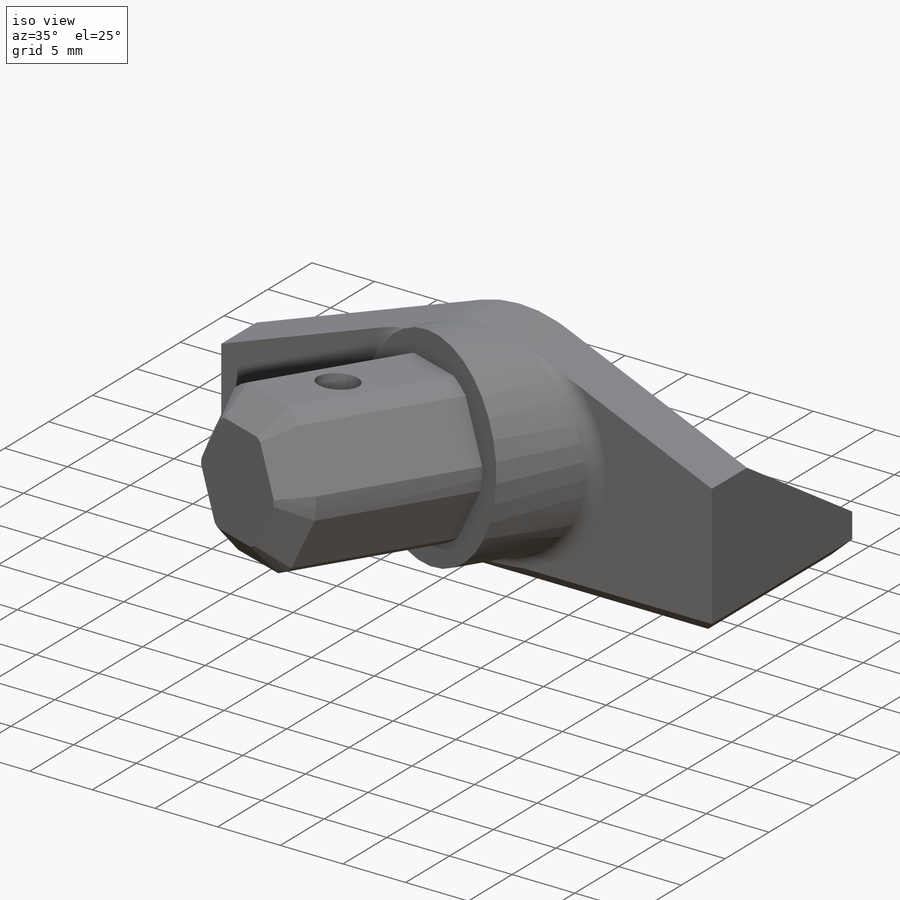
[diagram: iso view]
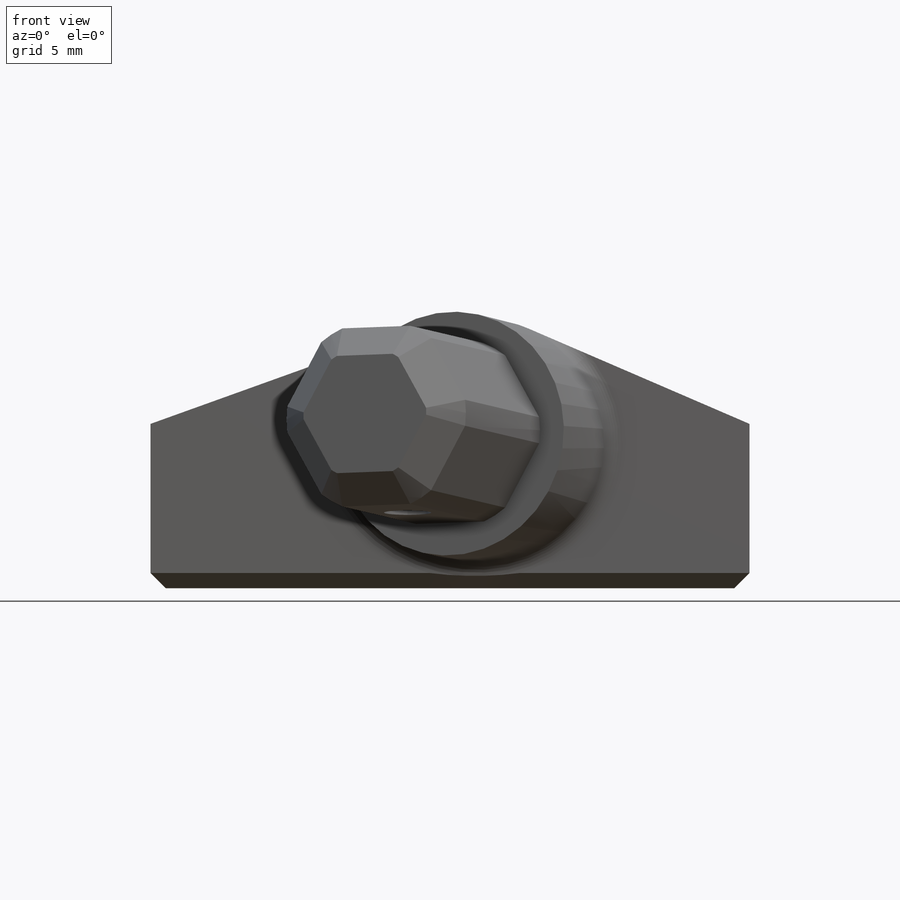
[diagram: front view]
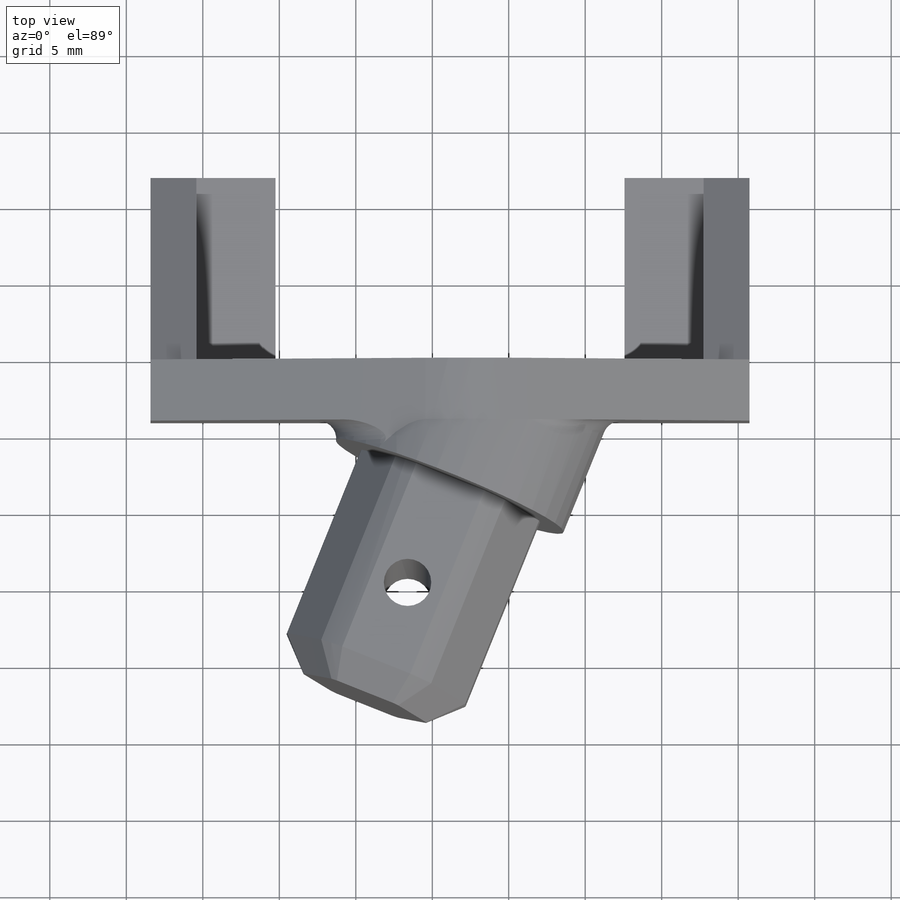
[diagram: top view]
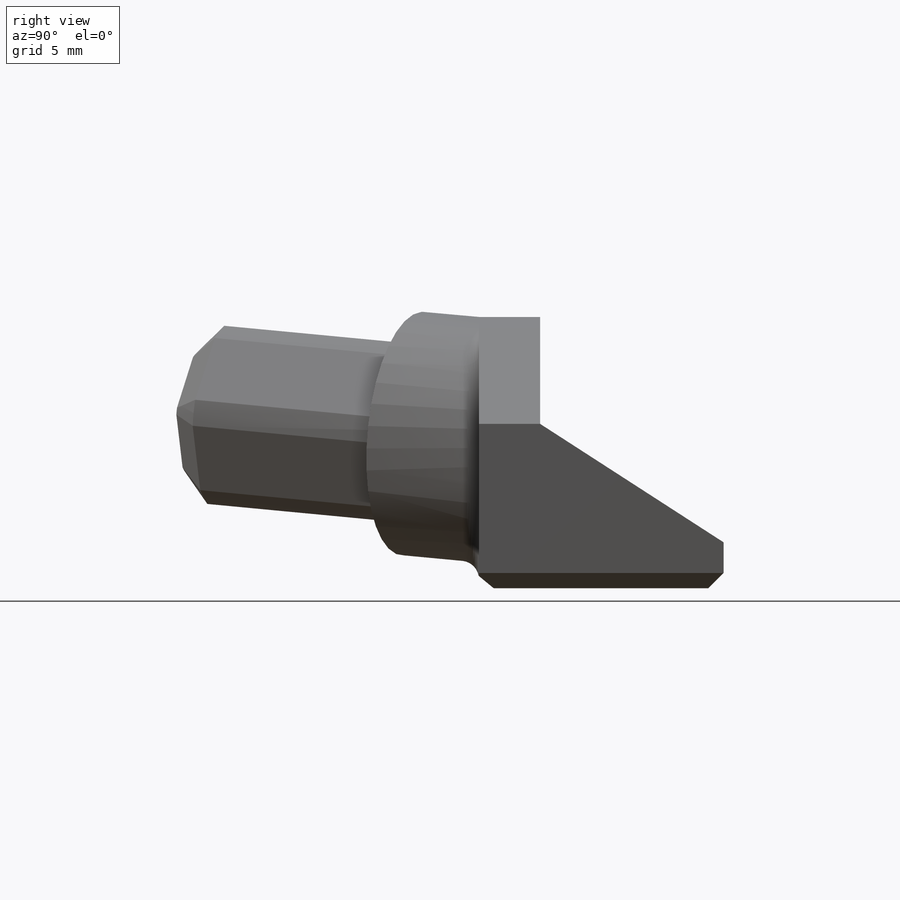
[diagram: right view]
SOLIDWORKS PART (.sldprt)
format: sldprt  version: not decoded by parser v0  size: 402,944 bytes
history: native  units: mm
features: sketch x12, extrude x6, cut_extrude x4, chamfer x2, material x1, plane x1, fillet x1 (+13 scaffold rows collapsed)
feature tree (40):
  scaffold x13  (default folders/planes/origin — collapsed)
  material  "Material <not specified>"
  sketch  "Sketch1"  dims[c1.D1=4.0mm c1.D2=3.0mm c1.D3=3.0mm c2.D2=~3.133475mm c3.D2=90.0deg c4.D2=3.0mm c4.D3=4.0mm c4.D4=0.0mm c4.D5=~14.442403mm c5.D5=90.0deg c6.D5=3.0mm c6.D6=15.493mm c6.D4=~22.819095mm]
  extrude  "Boss-Extrude1"  Depth=4mm
  sketch  "Sketch4"
  extrude  "Boss-Extrude3"  Depth=12mm
  sketch  "Sketch5"  dims[D1=0.5mm D2=0.5mm D3=8.2465mm]
  extrude  "Boss-Extrude4"  Depth=3mm
  sketch  "Sketch6"  dims[D1=0.0mm]
  extrude  "Boss-Extrude5"  Depth=3mm
  sketch  "Sketch8"  dims[D1=25.0mm D2=20.0mm]
  sketch  "Sketch9"  dims[D1=20.0mm D2=12.0mm]
  plane  "Plane1"
  sketch  "Sketch10"  dims[D1=16.0mm]
  extrude  "Boss-Extrude6"  Depth=15mm
  sketch  "Sketch12"  dims[c1.D1=~3.020753mm c1.D2=~5.282832mm c2.D1=0.0mm]
  cut_extrude  "Cut-Extrude1"  [1 undecoded]
  sketch  "Sketch13"  dims[D1=25.0mm D2=12.0mm]
  cut_extrude  "Cut-Extrude2"  [1 undecoded]
  sketch  "Sketch15"  dims[D1=20.0mm D2=~0.06381mm]
  cut_extrude  "Cut-Extrude3"  [1 undecoded]
  fillet  "Fillet6"  Radius=1.2mm
  sketch  "Sketch16"  dims[D1=12.64mm D2=11.7mm]
  extrude  "Boss-Extrude7"  Depth=15mm
  chamfer  "Chamfer2"  Distance=2mm Angle=45deg
  chamfer  "Chamfer3"  Distance=1mm Angle=45deg
  sketch  "Sketch17"  dims[D1=3.1mm D2=7.5mm]
  cut_extrude  "Cut-Extrude4"  [1 undecoded]
decode coverage: 20 of 25 modeling features carry decoded parameters
note: ~ marks probable driven/reference dimensions
note: 4 parameter values undecoded
summary: no parameter record found for 4 features
note: suppression state not decoded; provenance and decode notes live in map.json
